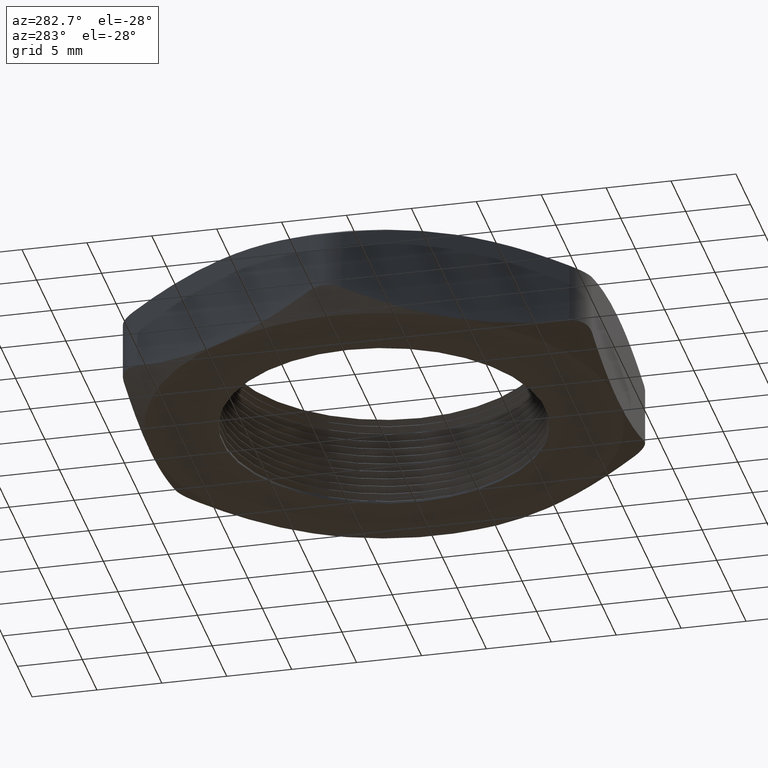
[diagram: clean part render]
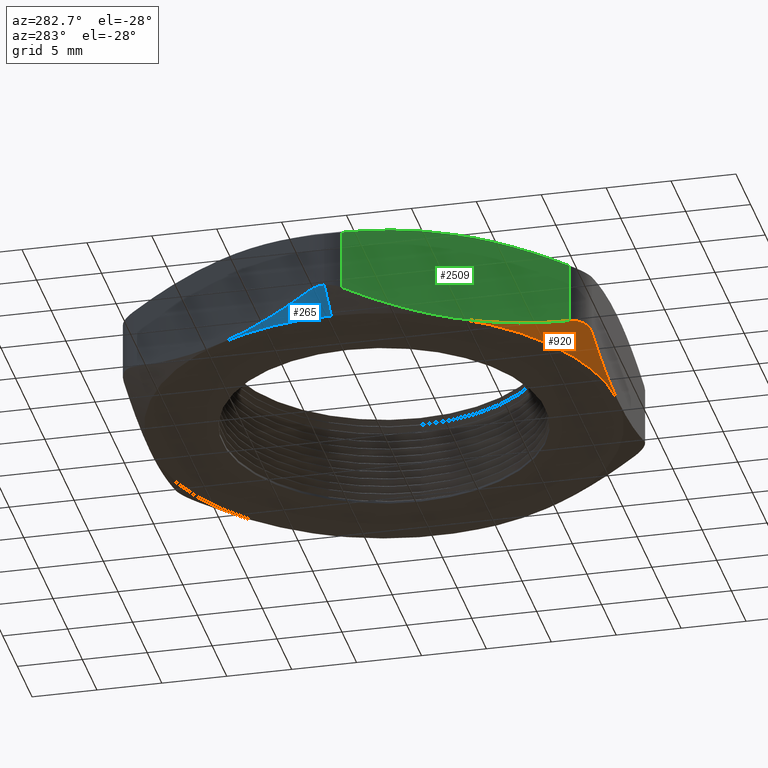
[diagram: same view with three faces highlighted in distinct colors, each labeled with its STEP entity id]
A machine part, auxiliary view with three faces highlighted in distinct colors.
Their STEP definitions:

[orange] entity #920 — the highlighted conical surface has half-angle 60 deg.
#53 = EDGE_CURVE ( 'NONE', #2737, #2536, #605, .T. ) ;
#359 = ORIENTED_EDGE ( 'NONE', *, *, #53, .F. ) ;
#369 = ORIENTED_EDGE ( 'NONE', *, *, #2742, .T. ) ;
#602 = DIRECTION ( 'NONE',  ( -1.000000000000000000, 0.0000000000000000000, 0.0000000000000000000 ) ) ;
#603 = DIRECTION ( 'NONE',  ( 0.0000000000000000000, 0.0000000000000000000, -1.000000000000000000 ) ) ;
#604 = AXIS2_PLACEMENT_3D ( 'NONE', #616, #603, #602 ) ;
#605 = CIRCLE ( 'NONE', #604, 0.7099999999999999600 ) ;
#616 = CARTESIAN_POINT ( 'NONE',  ( 0.0000000000000000000, 0.0000000000000000000, 0.0000000000000000000 ) ) ;
#725 = ORIENTED_EDGE ( 'NONE', *, *, #913, .T. ) ;
#737 = ORIENTED_EDGE ( 'NONE', *, *, #2724, .T. ) ;
#746 = EDGE_LOOP ( 'NONE', ( #737, #725, #369, #359 ) ) ;
#913 = EDGE_CURVE ( 'NONE', #2725, #2550, #1523, .T. ) ;
#920 = ADVANCED_FACE ( 'NONE', ( #1522 ), #1478, .T. ) ;
#1478 = CONICAL_SURFACE ( 'NONE', #1521, 0.7099999999999999600, 1.047197551196600100 ) ;
#1508 = DIRECTION ( 'NONE',  ( -1.000000000000000000, 0.0000000000000000000, 0.0000000000000000000 ) ) ;
#1509 = DIRECTION ( 'NONE',  ( 0.0000000000000000000, 0.0000000000000000000, 1.000000000000000000 ) ) ;
#1510 = CARTESIAN_POINT ( 'NONE',  ( -0.4387862045841158800, -0.6599999999999999200, 0.04765947463262471700 ) ) ;
#1511 = CARTESIAN_POINT ( 'NONE',  ( -0.4344771285868279700, -0.6674635385609790600, 0.04987051570004443600 ) ) ;
#1512 = CARTESIAN_POINT ( 'NONE',  ( -0.4291302171178009700, -0.6744593283151960600, 0.05159198415359964000 ) ) ;
#1513 = CARTESIAN_POINT ( 'NONE',  ( -0.4168348635717550300, -0.6867854115860055900, 0.05388934619562055200 ) ) ;
#1514 = CARTESIAN_POINT ( 'NONE',  ( -0.4097256664183042700, -0.6922566995037561200, 0.05448673991602385300 ) ) ;
#1515 = CARTESIAN_POINT ( 'NONE',  ( -0.3944952381572199300, -0.7010328366120298600, 0.05447922889204407500 ) ) ;
#1516 = CARTESIAN_POINT ( 'NONE',  ( -0.3862776011719883400, -0.7044157273964964900, 0.05388414981734795900 ) ) ;
#1517 = CARTESIAN_POINT ( 'NONE',  ( -0.3693439495999201200, -0.7089052613507527100, 0.05156043310660225800 ) ) ;
#1518 = CARTESIAN_POINT ( 'NONE',  ( -0.3607993000258771800, -0.7099999999999999600, 0.04986987015969922300 ) ) ;
#1519 = CARTESIAN_POINT ( 'NONE',  ( -0.3521836642056746500, -0.7099999999999999600, 0.04765947463262536200 ) ) ;
#1520 = CARTESIAN_POINT ( 'NONE',  ( 0.0000000000000000000, 0.0000000000000000000, 0.0000000000000000000 ) ) ;
#1521 = AXIS2_PLACEMENT_3D ( 'NONE', #1520, #1509, #1508 ) ;
#1522 = FACE_OUTER_BOUND ( 'NONE', #746, .T. ) ;
#1523 = B_SPLINE_CURVE_WITH_KNOTS ( 'NONE', 3,
 ( #1519, #1518, #1517, #1516, #1515, #1514, #1513, #1512, #1511, #1510 ),
 .UNSPECIFIED., .F., .F.,
 ( 4, 2, 2, 2, 4 ),
 ( 3.944410352605756300E-017, 0.0006687025668864416200, 0.001337405133772843800, 0.002006107700659245900, 0.002674810267545648100 ),
 .UNSPECIFIED. ) ;
#1841 = CARTESIAN_POINT ( 'NONE',  ( -0.6148780366869516200, -0.3549999999999997600, 0.0000000000000000000 ) ) ;
#1893 = CARTESIAN_POINT ( 'NONE',  ( -0.4387862045841158800, -0.6599999999999999200, 0.04765947463262471700 ) ) ;
#2221 = CARTESIAN_POINT ( 'NONE',  ( -0.3521836642056746500, -0.7099999999999999600, 0.04765947463262536200 ) ) ;
#2222 = CARTESIAN_POINT ( 'NONE',  ( -0.3232539526168621300, -0.7099999999999999600, 0.04023737527400179200 ) ) ;
#2223 = CARTESIAN_POINT ( 'NONE',  ( -0.2940899783268554600, -0.7099999999999999600, 0.03349295397377399100 ) ) ;
#2224 = CARTESIAN_POINT ( 'NONE',  ( -0.2357364212206001800, -0.7099999999999999600, 0.02171556993606064600 ) ) ;
#2225 = CARTESIAN_POINT ( 'NONE',  ( -0.2064828623824602200, -0.7099999999999999600, 0.01666649638784795800 ) ) ;
#2226 = CARTESIAN_POINT ( 'NONE',  ( -0.1184620020631935400, -0.7099999999999999600, 0.004364473937991521100 ) ) ;
#2227 = CARTESIAN_POINT ( 'NONE',  ( -0.05943055926227197600, -0.7099999999999998500, -4.481938114605433200E-017 ) ) ;
#2228 = CARTESIAN_POINT ( 'NONE',  ( 1.182924880895400800E-016, -0.7099999999999999600, 0.0000000000000000000 ) ) ;
#2230 = CARTESIAN_POINT ( 'NONE',  ( -0.3521836642056746500, -0.7099999999999999600, 0.04765947463262536200 ) ) ;
#2231 = B_SPLINE_CURVE_WITH_KNOTS ( 'NONE', 3,
 ( #2228, #2227, #2226, #2225, #2224, #2223, #2222, #2221 ),
 .UNSPECIFIED., .F., .F.,
 ( 4, 2, 2, 4 ),
 ( 0.06063526839793753600, 0.06515032642537850500, 0.06740785543909898200, 0.06966538445281945900 ),
 .UNSPECIFIED. ) ;
#2236 = B_SPLINE_CURVE_WITH_KNOTS ( 'NONE', 3,
 ( #2292, #2291, #2290, #2289, #2288, #2287 ),
 .UNSPECIFIED., .F., .F.,
 ( 4, 2, 4 ),
 ( 0.001508708194318558100, 0.006022059321461430100, 0.01053541044860430300 ),
 .UNSPECIFIED. ) ;
#2247 = CARTESIAN_POINT ( 'NONE',  ( 1.182924880895400800E-016, -0.7099999999999999600, 0.0000000000000000000 ) ) ;
#2287 = CARTESIAN_POINT ( 'NONE',  ( -0.6148780366869516200, -0.3549999999999997600, 0.0000000000000000000 ) ) ;
#2288 = CARTESIAN_POINT ( 'NONE',  ( -0.5849588998179133800, -0.4068214651757813300, 1.787439605229547200E-017 ) ) ;
#2289 = CARTESIAN_POINT ( 'NONE',  ( -0.5553573125328440400, -0.4580929183382063700, 0.004421353924671581800 ) ) ;
#2290 = CARTESIAN_POINT ( 'NONE',  ( -0.4967001195600668200, -0.5596901567964288600, 0.02086595451819746000 ) ) ;
#2291 = CARTESIAN_POINT ( 'NONE',  ( -0.4676419309782446900, -0.6100204157960620300, 0.03285323864890320900 ) ) ;
#2292 = CARTESIAN_POINT ( 'NONE',  ( -0.4387862045841158800, -0.6599999999999999200, 0.04765947463262471700 ) ) ;
#2536 = VERTEX_POINT ( 'NONE', #1841 ) ;
#2550 = VERTEX_POINT ( 'NONE', #1893 ) ;
#2724 = EDGE_CURVE ( 'NONE', #2737, #2725, #2231, .T. ) ;
#2725 = VERTEX_POINT ( 'NONE', #2230 ) ;
#2737 = VERTEX_POINT ( 'NONE', #2247 ) ;
#2742 = EDGE_CURVE ( 'NONE', #2550, #2536, #2236, .T. ) ;

[blue] entity #265 — the highlighted conical surface has half-angle 60 deg.
#252 = VERTEX_POINT ( 'NONE', #1002 ) ;
#265 = ADVANCED_FACE ( 'NONE', ( #1028 ), #1026, .T. ) ;
#266 = EDGE_LOOP ( 'NONE', ( #267, #271, #273, #348 ) ) ;
#267 = ORIENTED_EDGE ( 'NONE', *, *, #268, .F. ) ;
#268 = EDGE_CURVE ( 'NONE', #269, #270, #1021, .T. ) ;
#269 = VERTEX_POINT ( 'NONE', #1072 ) ;
#270 = VERTEX_POINT ( 'NONE', #1071 ) ;
#271 = ORIENTED_EDGE ( 'NONE', *, *, #272, .T. ) ;
#272 = EDGE_CURVE ( 'NONE', #269, #252, #1070, .T. ) ;
#273 = ORIENTED_EDGE ( 'NONE', *, *, #274, .T. ) ;
#274 = EDGE_CURVE ( 'NONE', #252, #275, #1066, .T. ) ;
#275 = VERTEX_POINT ( 'NONE', #1065 ) ;
#348 = ORIENTED_EDGE ( 'NONE', *, *, #349, .T. ) ;
#349 = EDGE_CURVE ( 'NONE', #275, #270, #1213, .T. ) ;
#1002 = CARTESIAN_POINT ( 'NONE',  ( -0.8043673284113432900, -1.553574591788112700E-025, 0.05448300246099463400 ) ) ;
#1018 = DIRECTION ( 'NONE',  ( -1.000000000000000000, 0.0000000000000000000, 0.0000000000000000000 ) ) ;
#1019 = DIRECTION ( 'NONE',  ( 0.0000000000000000000, 0.0000000000000000000, -1.000000000000000000 ) ) ;
#1020 = AXIS2_PLACEMENT_3D ( 'NONE', #1027, #1019, #1018 ) ;
#1021 = CIRCLE ( 'NONE', #1020, 0.7099999999999999600 ) ;
#1022 = DIRECTION ( 'NONE',  ( -1.000000000000000000, 0.0000000000000000000, 0.0000000000000000000 ) ) ;
#1023 = DIRECTION ( 'NONE',  ( 0.0000000000000000000, 0.0000000000000000000, 1.000000000000000000 ) ) ;
#1024 = CARTESIAN_POINT ( 'NONE',  ( 0.0000000000000000000, 0.0000000000000000000, 0.0000000000000000000 ) ) ;
#1025 = AXIS2_PLACEMENT_3D ( 'NONE', #1024, #1023, #1022 ) ;
#1026 = CONICAL_SURFACE ( 'NONE', #1025, 0.7099999999999999600, 1.047197551196600100 ) ;
#1027 = CARTESIAN_POINT ( 'NONE',  ( 0.0000000000000000000, 0.0000000000000000000, 0.0000000000000000000 ) ) ;
#1028 = FACE_OUTER_BOUND ( 'NONE', #266, .T. ) ;
#1058 = CARTESIAN_POINT ( 'NONE',  ( -0.7909698687897871400, 0.05000000000000011400, 0.04765947463262464000 ) ) ;
#1059 = CARTESIAN_POINT ( 'NONE',  ( -0.7952720388300409400, 0.04254842290748042000, 0.04986697216666890300 ) ) ;
#1060 = CARTESIAN_POINT ( 'NONE',  ( -0.7986532809423020400, 0.03443386516074394700, 0.05158652021619254700 ) ) ;
#1061 = CARTESIAN_POINT ( 'NONE',  ( -0.8031800024258329800, 0.01765183754414060800, 0.05388375594374750200 ) ) ;
#1062 = CARTESIAN_POINT ( 'NONE',  ( -0.8043673284113430600, 0.008775508107240502500, 0.05448300246099464800 ) ) ;
#1063 = CARTESIAN_POINT ( 'NONE',  ( -0.8043673284113432900, -1.553574591788112700E-025, 0.05448300246099463400 ) ) ;
#1065 = CARTESIAN_POINT ( 'NONE',  ( -0.7909698687897871400, 0.05000000000000011400, 0.04765947463262464000 ) ) ;
#1066 = B_SPLINE_CURVE_WITH_KNOTS ( 'NONE', 3,
 ( #1063, #1062, #1061, #1060, #1059, #1058 ),
 .UNSPECIFIED., .F., .F.,
 ( 4, 2, 4 ),
 ( 0.001339548531196700600, 0.002007179399371175400, 0.002674810267545650300 ),
 .UNSPECIFIED. ) ;
#1067 = DIRECTION ( 'NONE',  ( -0.8660254037844397100, 0.0000000000000000000, 0.4999999999999979500 ) ) ;
#1068 = VECTOR ( 'NONE', #1067, 39.37007874015748900 ) ;
#1069 = CARTESIAN_POINT ( 'NONE',  ( -0.7099999999999999600, 0.0000000000000000000, 0.0000000000000000000 ) ) ;
#1070 = LINE ( 'NONE', #1069, #1068 ) ;
#1071 = CARTESIAN_POINT ( 'NONE',  ( -0.6148780366869514000, 0.3549999999999999800, 0.0000000000000000000 ) ) ;
#1072 = CARTESIAN_POINT ( 'NONE',  ( -0.7099999999999999600, 0.0000000000000000000, 0.0000000000000000000 ) ) ;
#1204 = CARTESIAN_POINT ( 'NONE',  ( -0.6148780366869514000, 0.3549999999999999800, 0.0000000000000000000 ) ) ;
#1205 = CARTESIAN_POINT ( 'NONE',  ( -0.6447971735559898700, 0.3031785348242185800, -8.136851934253904500E-018 ) ) ;
#1206 = CARTESIAN_POINT ( 'NONE',  ( -0.6743987608410586500, 0.2519070816617936500, 0.004421353924671488900 ) ) ;
#1207 = CARTESIAN_POINT ( 'NONE',  ( -0.7330559538138362600, 0.1503098432035712400, 0.02086595451819732800 ) ) ;
#1208 = CARTESIAN_POINT ( 'NONE',  ( -0.7621141423956583300, 0.09997958420393778000, 0.03285323864890316000 ) ) ;
#1209 = CARTESIAN_POINT ( 'NONE',  ( -0.7909698687897871400, 0.05000000000000011400, 0.04765947463262464000 ) ) ;
#1213 = B_SPLINE_CURVE_WITH_KNOTS ( 'NONE', 3,
 ( #1209, #1208, #1207, #1206, #1205, #1204 ),
 .UNSPECIFIED., .F., .F.,
 ( 4, 2, 4 ),
 ( 0.001508708194318558700, 0.006022059321461428400, 0.01053541044860429800 ),
 .UNSPECIFIED. ) ;

[green] entity #2509 — the highlighted planar face has unit normal (0.866, 0.5, 0).
#221 = VERTEX_POINT ( 'NONE', #933 ) ;
#251 = VERTEX_POINT ( 'NONE', #1003 ) ;
#264 = EDGE_CURVE ( 'NONE', #251, #221, #1038, .T. ) ;
#933 = CARTESIAN_POINT ( 'NONE',  ( -0.7909698687897872600, -0.04999999999999987100, 0.04765947463262466800 ) ) ;
#1003 = CARTESIAN_POINT ( 'NONE',  ( -0.7909698687897871400, -0.04999999999999996800, 0.2323405253673754000 ) ) ;
#1029 = DIRECTION ( 'NONE',  ( 0.0000000000000000000, 0.0000000000000000000, -1.000000000000000000 ) ) ;
#1030 = VECTOR ( 'NONE', #1029, 39.37007874015748100 ) ;
#1037 = CARTESIAN_POINT ( 'NONE',  ( -0.7909698687897871400, -0.04999999999999992000, 0.2800000000000000300 ) ) ;
#1038 = LINE ( 'NONE', #1037, #1030 ) ;
#1686 = CARTESIAN_POINT ( 'NONE',  ( -0.6297762239155775300, -0.3291955827793459100, 2.080899838923948100E-017 ) ) ;
#1687 = CARTESIAN_POINT ( 'NONE',  ( -0.6148780366869516200, -0.3549999999999997600, 0.0000000000000000000 ) ) ;
#1690 = B_SPLINE_CURVE_WITH_KNOTS ( 'NONE', 3,
 ( #1687, #1686, #1746, #1745, #1744, #1743, #1742, #1741 ),
 .UNSPECIFIED., .F., .F.,
 ( 4, 2, 2, 4 ),
 ( 0.01053541044860430300, 0.01278282655606186700, 0.01503024266351943300, 0.01952507487843456500 ),
 .UNSPECIFIED. ) ;
#1721 = CARTESIAN_POINT ( 'NONE',  ( -0.6148780366869516200, -0.3549999999999998200, 0.2800000000000000300 ) ) ;
#1722 = CARTESIAN_POINT ( 'NONE',  ( -0.6447971735559898700, -0.3031785348242183600, 0.2800000000000000300 ) ) ;
#1723 = CARTESIAN_POINT ( 'NONE',  ( -0.6743987608410588800, -0.2519070816617935400, 0.2755786460753285000 ) ) ;
#1724 = CARTESIAN_POINT ( 'NONE',  ( -0.7330559538138367000, -0.1503098432035710200, 0.2591340454818026900 ) ) ;
#1725 = CARTESIAN_POINT ( 'NONE',  ( -0.7621141423956583300, -0.09997958420393764100, 0.2471467613510967600 ) ) ;
#1726 = CARTESIAN_POINT ( 'NONE',  ( -0.7909698687897871400, -0.04999999999999996800, 0.2323405253673754000 ) ) ;
#1729 = CARTESIAN_POINT ( 'NONE',  ( -0.6148780366869516200, -0.3549999999999998200, 0.2800000000000000300 ) ) ;
#1730 = B_SPLINE_CURVE_WITH_KNOTS ( 'NONE', 3,
 ( #1726, #1725, #1724, #1723, #1722, #1721 ),
 .UNSPECIFIED., .F., .F.,
 ( 4, 2, 4 ),
 ( 0.001508708194318564200, 0.006022059321461431900, 0.01053541044860430000 ),
 .UNSPECIFIED. ) ;
#1741 = CARTESIAN_POINT ( 'NONE',  ( -0.7909698687897872600, -0.04999999999999987100, 0.04765947463262466800 ) ) ;
#1742 = CARTESIAN_POINT ( 'NONE',  ( -0.7621779899943438300, -0.09986899691907309700, 0.03288599965447343300 ) ) ;
#1743 = CARTESIAN_POINT ( 'NONE',  ( -0.7331550873551476700, -0.1501381388732857500, 0.02090195284768049000 ) ) ;
#1744 = CARTESIAN_POINT ( 'NONE',  ( -0.6891545988956860900, -0.2263492204429210500, 0.008554083981052859300 ) ) ;
#1745 = CARTESIAN_POINT ( 'NONE',  ( -0.6744100552122726000, -0.2518875192370113600, 0.005376464474643440100 ) ) ;
#1746 = CARTESIAN_POINT ( 'NONE',  ( -0.6447490040728254300, -0.3032619668164332500, 0.001097550502611669600 ) ) ;
#1785 = DIRECTION ( 'NONE',  ( -0.4999999999999996100, 0.8660254037844388200, 0.0000000000000000000 ) ) ;
#1786 = DIRECTION ( 'NONE',  ( 0.8660254037844388200, 0.4999999999999996100, 0.0000000000000000000 ) ) ;
#1787 = CARTESIAN_POINT ( 'NONE',  ( -0.8198373822492685000, 1.379384271563209300E-016, 0.2800000000000000300 ) ) ;
#1788 = AXIS2_PLACEMENT_3D ( 'NONE', #1787, #1786, #1785 ) ;
#1789 = PLANE ( 'NONE',  #1788 ) ;
#1793 = FACE_OUTER_BOUND ( 'NONE', #2502, .T. ) ;
#1841 = CARTESIAN_POINT ( 'NONE',  ( -0.6148780366869516200, -0.3549999999999997600, 0.0000000000000000000 ) ) ;
#1842 = DIRECTION ( 'NONE',  ( 0.0000000000000000000, 0.0000000000000000000, 1.000000000000000000 ) ) ;
#1843 = VECTOR ( 'NONE', #1842, 39.37007874015748100 ) ;
#1844 = CARTESIAN_POINT ( 'NONE',  ( -0.4387862045841158800, -0.6599999999999998100, 0.2800000000000000300 ) ) ;
#1845 = CARTESIAN_POINT ( 'NONE',  ( -0.4387862045841286500, -0.6599999999999778300, 0.2323405253673818700 ) ) ;
#1846 = CARTESIAN_POINT ( 'NONE',  ( -0.4675780833795702400, -0.6101310030809081700, 0.2471140003455313000 ) ) ;
#1847 = CARTESIAN_POINT ( 'NONE',  ( -0.4966009860187642900, -0.5598618611266991100, 0.2590980471523224300 ) ) ;
#1848 = CARTESIAN_POINT ( 'NONE',  ( -0.5406014744782224900, -0.4836507795570692500, 0.2714459160189483000 ) ) ;
#1849 = CARTESIAN_POINT ( 'NONE',  ( -0.5553460181616344200, -0.4581124807629804500, 0.2746235355253572900 ) ) ;
#1850 = CARTESIAN_POINT ( 'NONE',  ( -0.5850070693010799300, -0.4067380331835626600, 0.2789024494973884600 ) ) ;
#1851 = CARTESIAN_POINT ( 'NONE',  ( -0.5999798494583268300, -0.3808044172206519500, 0.2800000000000000300 ) ) ;
#1852 = CARTESIAN_POINT ( 'NONE',  ( -0.6148780366869516200, -0.3549999999999998200, 0.2800000000000000300 ) ) ;
#1853 = LINE ( 'NONE', #1844, #1843 ) ;
#1854 = CARTESIAN_POINT ( 'NONE',  ( -0.4387862045841286500, -0.6599999999999778300, 0.2323405253673818700 ) ) ;
#1855 = B_SPLINE_CURVE_WITH_KNOTS ( 'NONE', 3,
 ( #1852, #1851, #1850, #1849, #1848, #1847, #1846, #1845 ),
 .UNSPECIFIED., .F., .F.,
 ( 4, 2, 2, 4 ),
 ( 0.01053541044860430000, 0.01278282655606169900, 0.01503024266351909700, 0.01952507487843389800 ),
 .UNSPECIFIED. ) ;
#1893 = CARTESIAN_POINT ( 'NONE',  ( -0.4387862045841158800, -0.6599999999999999200, 0.04765947463262471700 ) ) ;
#2236 = B_SPLINE_CURVE_WITH_KNOTS ( 'NONE', 3,
 ( #2292, #2291, #2290, #2289, #2288, #2287 ),
 .UNSPECIFIED., .F., .F.,
 ( 4, 2, 4 ),
 ( 0.001508708194318558100, 0.006022059321461430100, 0.01053541044860430300 ),
 .UNSPECIFIED. ) ;
#2287 = CARTESIAN_POINT ( 'NONE',  ( -0.6148780366869516200, -0.3549999999999997600, 0.0000000000000000000 ) ) ;
#2288 = CARTESIAN_POINT ( 'NONE',  ( -0.5849588998179133800, -0.4068214651757813300, 1.787439605229547200E-017 ) ) ;
#2289 = CARTESIAN_POINT ( 'NONE',  ( -0.5553573125328440400, -0.4580929183382063700, 0.004421353924671581800 ) ) ;
#2290 = CARTESIAN_POINT ( 'NONE',  ( -0.4967001195600668200, -0.5596901567964288600, 0.02086595451819746000 ) ) ;
#2291 = CARTESIAN_POINT ( 'NONE',  ( -0.4676419309782446900, -0.6100204157960620300, 0.03285323864890320900 ) ) ;
#2292 = CARTESIAN_POINT ( 'NONE',  ( -0.4387862045841158800, -0.6599999999999999200, 0.04765947463262471700 ) ) ;
#2471 = ORIENTED_EDGE ( 'NONE', *, *, #264, .T. ) ;
#2472 = ORIENTED_EDGE ( 'NONE', *, *, #2474, .F. ) ;
#2474 = EDGE_CURVE ( 'NONE', #2536, #221, #1690, .T. ) ;
#2481 = EDGE_CURVE ( 'NONE', #251, #2483, #1730, .T. ) ;
#2483 = VERTEX_POINT ( 'NONE', #1729 ) ;
#2487 = ORIENTED_EDGE ( 'NONE', *, *, #2481, .F. ) ;
#2502 = EDGE_LOOP ( 'NONE', ( #2743, #2549, #2531, #2487, #2471, #2472 ) ) ;
#2509 = ADVANCED_FACE ( 'NONE', ( #1793 ), #1789, .F. ) ;
#2531 = ORIENTED_EDGE ( 'NONE', *, *, #2533, .F. ) ;
#2533 = EDGE_CURVE ( 'NONE', #2483, #2534, #1855, .T. ) ;
#2534 = VERTEX_POINT ( 'NONE', #1854 ) ;
#2535 = EDGE_CURVE ( 'NONE', #2550, #2534, #1853, .T. ) ;
#2536 = VERTEX_POINT ( 'NONE', #1841 ) ;
#2549 = ORIENTED_EDGE ( 'NONE', *, *, #2535, .T. ) ;
#2550 = VERTEX_POINT ( 'NONE', #1893 ) ;
#2742 = EDGE_CURVE ( 'NONE', #2550, #2536, #2236, .T. ) ;
#2743 = ORIENTED_EDGE ( 'NONE', *, *, #2742, .F. ) ;